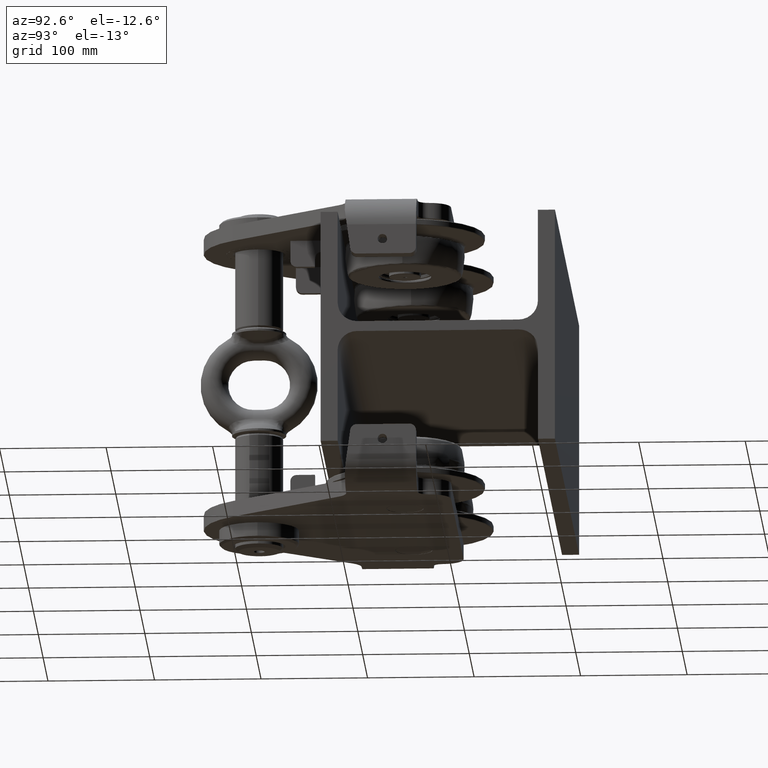
[diagram: clean part render]
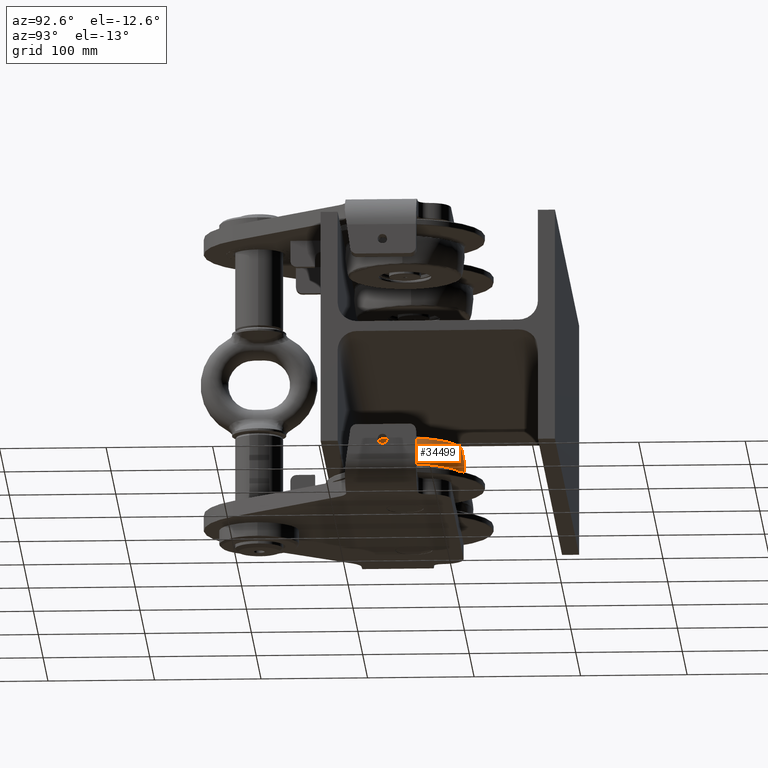
[diagram: same view with one face highlighted and labeled with its STEP entity id]
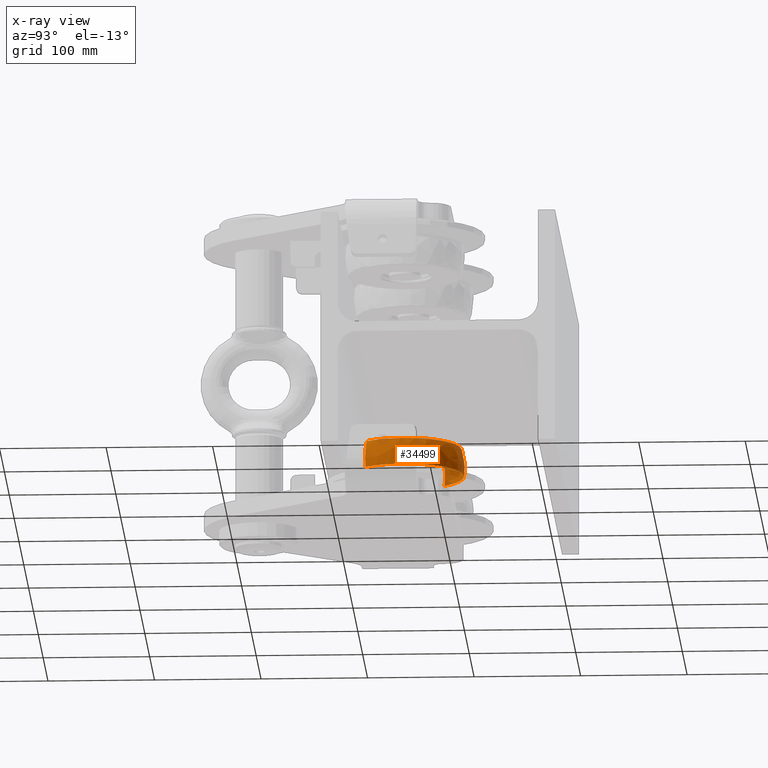
[diagram: x-ray of the same camera — body ghosted, the highlighted face saturated]
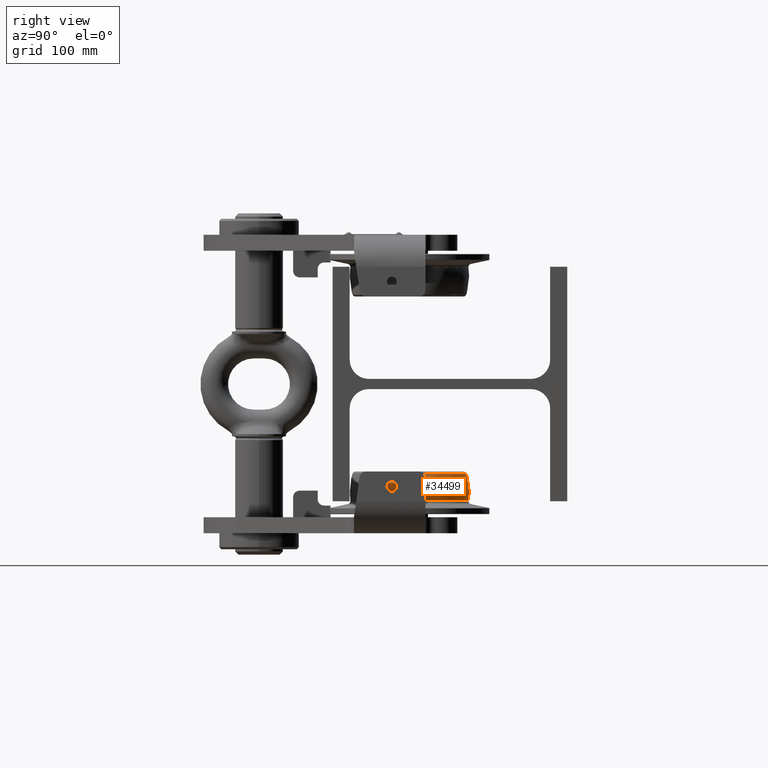
[diagram: same view with one face highlighted and labeled with its STEP entity id]
A machine part, auxiliary view. The second image highlights one B-rep face of the part: STEP entity #34499.
The next image is the same camera in x-ray: the body ghosted, the highlighted face saturated — about 6% of this face is hidden behind the body in this view.
A second angle (right view) of the same face is appended — the face is thin or edge-on in the first view.
In plain terms, the highlighted spherical surface has radius 56 mm.
Its self-contained STEP definition (entity closure, byte-faithful):
#1097 = EDGE_CURVE ( 'NONE', #2039, #38076, #21109, .T. ) ;
#2039 = VERTEX_POINT ( 'NONE', #16925 ) ;
#2251 = DIRECTION ( 'NONE',  ( 0.6351401898228050700, 0.7723968793773387000, -1.133913662422742700E-016 ) ) ;
#2290 = ORIENTED_EDGE ( 'NONE', *, *, #20733, .T. ) ;
#4008 = AXIS2_PLACEMENT_3D ( 'NONE', #27430, #21329, #34246 ) ;
#5357 = SPHERICAL_SURFACE ( 'NONE', #7544, 56.00000000000000700 ) ;
#5590 = AXIS2_PLACEMENT_3D ( 'NONE', #40605, #11026, #10871 ) ;
#6794 = DIRECTION ( 'NONE',  ( -0.6351401898228051800, -0.7723968793773385900, 1.133913662422743000E-016 ) ) ;
#6970 = VERTEX_POINT ( 'NONE', #41971 ) ;
#7417 = ORIENTED_EDGE ( 'NONE', *, *, #17094, .T. ) ;
#7544 = AXIS2_PLACEMENT_3D ( 'NONE', #32736, #20260, #36042 ) ;
#8750 = CARTESIAN_POINT ( 'NONE',  ( 132.7850393293188100, -73.18204012308551400, -109.2258411342689300 ) ) ;
#9945 = CARTESIAN_POINT ( 'NONE',  ( 90.00000000000002800, -37.99999999999981500, -100.9999999999998300 ) ) ;
#10871 = DIRECTION ( 'NONE',  ( 0.6351401898228051800, 0.7723968793773385900, 0.0000000000000000000 ) ) ;
#11026 = DIRECTION ( 'NONE',  ( 1.110223024625158000E-016, 5.551115123125788900E-017, 1.000000000000000000 ) ) ;
#11199 = ORIENTED_EDGE ( 'NONE', *, *, #33584, .T. ) ;
#11823 = CARTESIAN_POINT ( 'NONE',  ( 90.00000000000002800, -37.99999999999981500, -100.9999999999998300 ) ) ;
#13060 = AXIS2_PLACEMENT_3D ( 'NONE', #31696, #18682, #37877 ) ;
#13239 = CIRCLE ( 'NONE', #33933, 56.00000000000000000 ) ;
#13698 = AXIS2_PLACEMENT_3D ( 'NONE', #9945, #6794, #39278 ) ;
#14600 = CARTESIAN_POINT ( 'NONE',  ( 90.00000000000002800, -37.99999999999981500, -84.09433962264135700 ) ) ;
#15659 = CIRCLE ( 'NONE', #5590, 55.39255850413273700 ) ;
#16925 = CARTESIAN_POINT ( 'NONE',  ( 123.9083891974522200, 3.236146634227783400, -84.09433962264135700 ) ) ;
#17094 = EDGE_CURVE ( 'NONE', #38076, #18350, #13239, .T. ) ;
#17736 = DIRECTION ( 'NONE',  ( -0.6351401898228052900, -0.7723968793773387000, 0.0000000000000000000 ) ) ;
#18350 = VERTEX_POINT ( 'NONE', #8750 ) ;
#18383 = DIRECTION ( 'NONE',  ( -0.7723968793773387000, 0.6351401898228051800, 0.0000000000000000000 ) ) ;
#18682 = DIRECTION ( 'NONE',  ( -1.110223024625158000E-016, -5.551115123125788900E-017, -1.000000000000000000 ) ) ;
#19058 = EDGE_LOOP ( 'NONE', ( #41245, #22158, #7417, #2290, #11199, #36417 ) ) ;
#19116 = EDGE_CURVE ( 'NONE', #39764, #39571, #28179, .T. ) ;
#20260 = DIRECTION ( 'NONE',  ( 0.6351401898228051800, 0.7723968793773385900, -1.133913662422742700E-016 ) ) ;
#20733 = EDGE_CURVE ( 'NONE', #18350, #6970, #15659, .T. ) ;
#21109 = CIRCLE ( 'NONE', #40706, 53.38725172927907900 ) ;
#21329 = DIRECTION ( 'NONE',  ( 1.110223024625158000E-016, 5.551115123125788900E-017, 1.000000000000000000 ) ) ;
#22158 = ORIENTED_EDGE ( 'NONE', *, *, #1097, .T. ) ;
#26731 = FACE_OUTER_BOUND ( 'NONE', #19058, .T. ) ;
#27430 = CARTESIAN_POINT ( 'NONE',  ( 90.00000000000002800, -37.99999999999981500, -109.2258411342689300 ) ) ;
#27481 = DIRECTION ( 'NONE',  ( -1.110223024625158000E-016, -5.551115123125788900E-017, -1.000000000000000000 ) ) ;
#28179 = CIRCLE ( 'NONE', #13698, 55.99999999999999300 ) ;
#28424 = CIRCLE ( 'NONE', #4008, 55.39255850413273700 ) ;
#31696 = CARTESIAN_POINT ( 'NONE',  ( 90.00000000000002800, -37.99999999999981500, -84.09433962264135700 ) ) ;
#32736 = CARTESIAN_POINT ( 'NONE',  ( 90.00000000000002800, -37.99999999999981500, -100.9999999999998300 ) ) ;
#33584 = EDGE_CURVE ( 'NONE', #6970, #39571, #28424, .T. ) ;
#33906 = CIRCLE ( 'NONE', #13060, 53.38725172927907900 ) ;
#33933 = AXIS2_PLACEMENT_3D ( 'NONE', #11823, #2251, #18383 ) ;
#34246 = DIRECTION ( 'NONE',  ( 0.6351401898228051800, 0.7723968793773385900, 0.0000000000000000000 ) ) ;
#34499 = ADVANCED_FACE ( 'NONE', ( #26731 ), #5357, .T. ) ;
#34695 = CARTESIAN_POINT ( 'NONE',  ( 48.76385336577243400, -4.091610802547606300, -84.09433962264135700 ) ) ;
#36042 = DIRECTION ( 'NONE',  ( -0.7723968793773385900, 0.6351401898228051800, 0.0000000000000000000 ) ) ;
#36417 = ORIENTED_EDGE ( 'NONE', *, *, #19116, .F. ) ;
#37877 = DIRECTION ( 'NONE',  ( -0.6351401898228052900, -0.7723968793773387000, 0.0000000000000000000 ) ) ;
#38076 = VERTEX_POINT ( 'NONE', #42191 ) ;
#39278 = DIRECTION ( 'NONE',  ( 0.7723968793773385900, -0.6351401898228052900, 0.0000000000000000000 ) ) ;
#39571 = VERTEX_POINT ( 'NONE', #41722 ) ;
#39764 = VERTEX_POINT ( 'NONE', #34695 ) ;
#39782 = EDGE_CURVE ( 'NONE', #39764, #2039, #33906, .T. ) ;
#40605 = CARTESIAN_POINT ( 'NONE',  ( 90.00000000000002800, -37.99999999999981500, -109.2258411342689300 ) ) ;
#40706 = AXIS2_PLACEMENT_3D ( 'NONE', #14600, #27481, #17736 ) ;
#41245 = ORIENTED_EDGE ( 'NONE', *, *, #39782, .T. ) ;
#41722 = CARTESIAN_POINT ( 'NONE',  ( 47.21496067068124300, -2.817959876914109400, -109.2258411342689300 ) ) ;
#41971 = CARTESIAN_POINT ( 'NONE',  ( 125.1820401230857300, 4.785039329318967900, -109.2258411342689300 ) ) ;
#42191 = CARTESIAN_POINT ( 'NONE',  ( 131.2361466342276200, -71.90838919745201000, -84.09433962264135700 ) ) ;